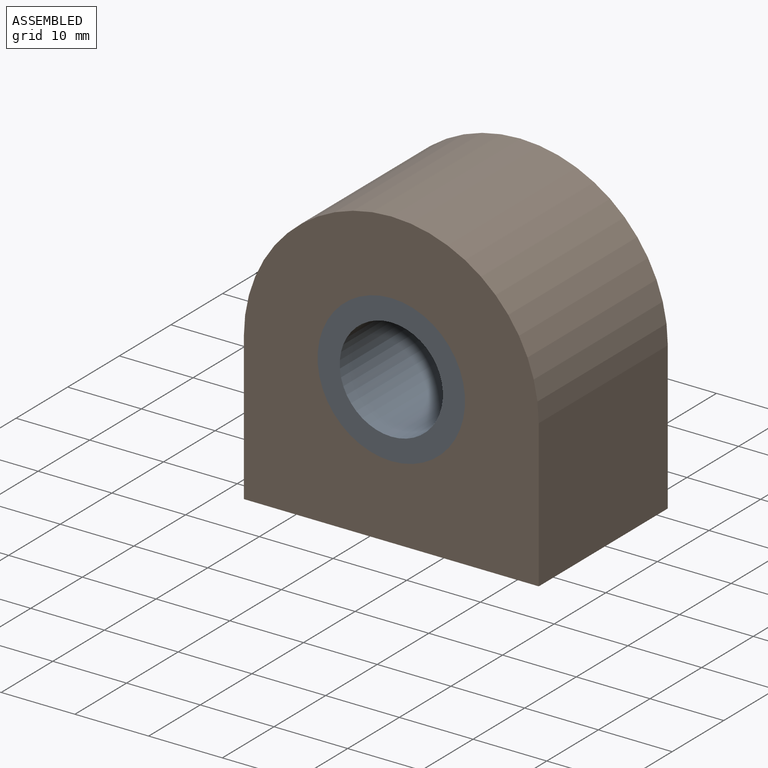
[diagram: assembled view]
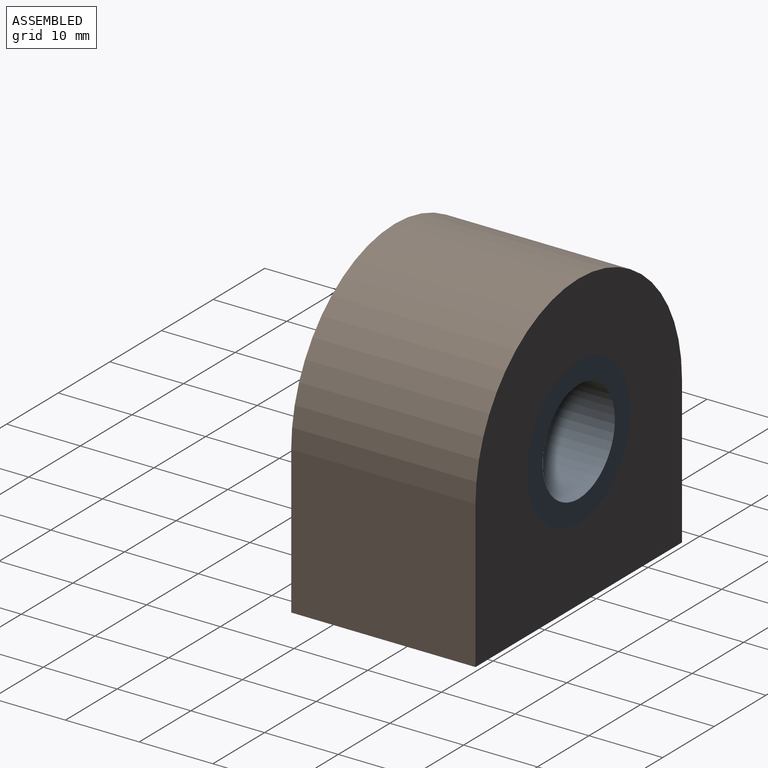
[diagram: assembled view, second angle]
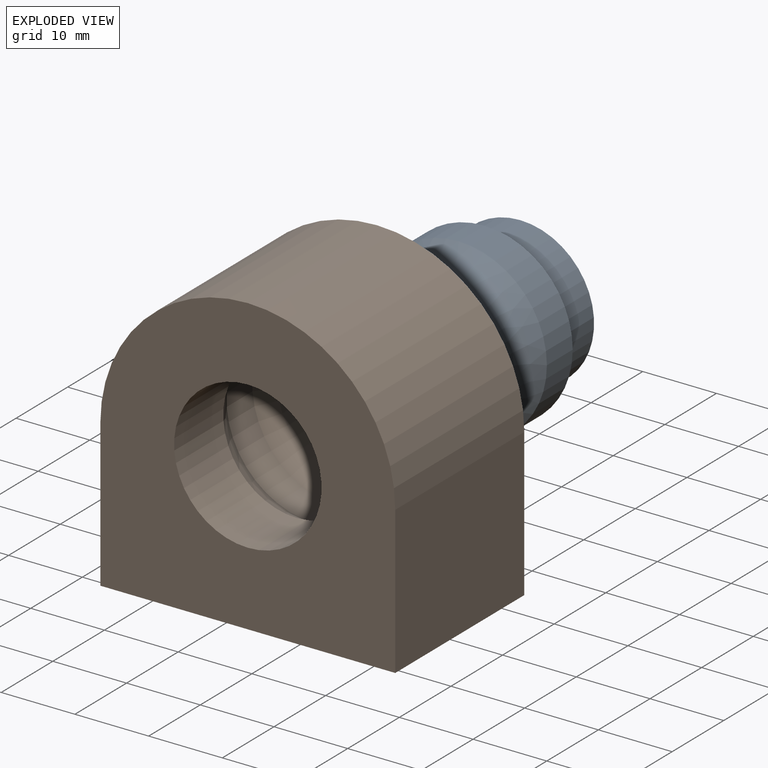
[diagram: exploded view]
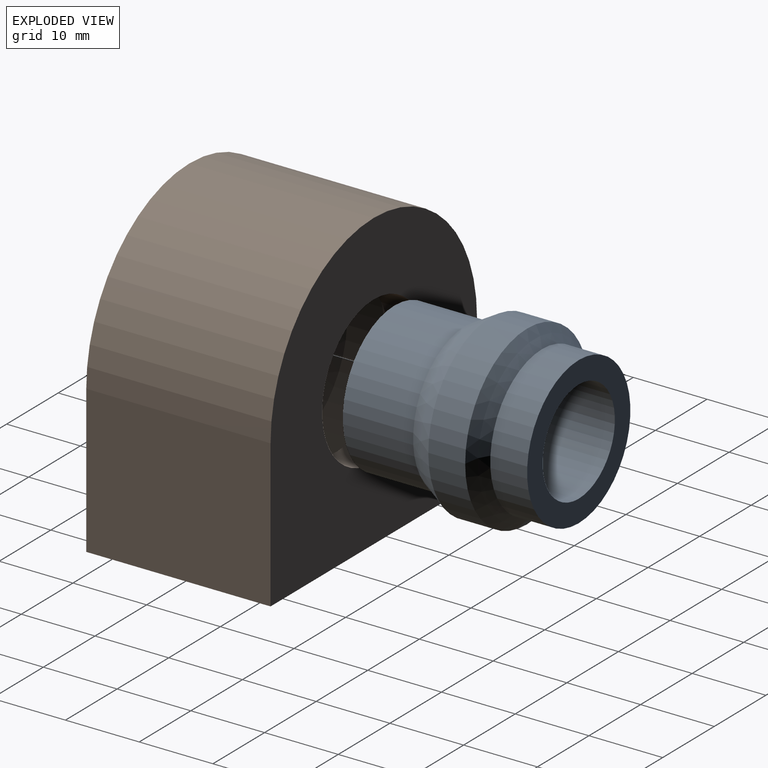
[diagram: exploded view, second angle]
ASSEMBLY  parts=2 mates=2
PART A: 8 faces, bbox 24x25x24 mm
  f0: plane 20x20mm, normal (0,1,0), area 160.2mm2, adj f1,f7
  f1: cylinder r=10mm len=20mm, axis (0,-1,0), area 314.2mm2, adj f0,f2
  f2: cone r=10mm half-angle=45deg, axis (0,-1,0), area 195.5mm2, adj f1,f3
  f3: cylinder r=12mm len=24mm, axis (0,-1,0), area 377mm2, adj f2,f4
  f4: cone r=12mm half-angle=30deg, axis (0,1,0), area 276.5mm2, adj f3,f5
  f5: cylinder r=10mm len=20mm, axis (0,-1,0), area 599.2mm2, adj f4,f6
  f6: plane 20x20mm, normal (0,-1,0), area 160.2mm2, adj f5,f7
  f7: cylinder r=7mm len=25mm, axis (0,-1,0), area 1099.6mm2, adj f0,f6
PART B: 11 faces, bbox 40x25x40 mm
  f0: plane 25x20mm, normal (-1,0,0), area 500mm2, adj f1,f3,f4,f5
  f1: plane 40x25mm, normal (0,0,-1), area 1000mm2, adj f0,f2,f4,f5
  f2: plane 25x20mm, normal (1,0,0), area 500mm2, adj f1,f3,f4,f5
  f3: cylinder r=20mm len=40mm, axis (0,-1,0), area 1570.8mm2, adj f0,f2,f4,f5
  f4: plane 40x40mm, normal (0,1,0), area 1114.2mm2, adj f0,f1,f2,f3,f6
  f5: plane 40x40mm, normal (0,-1,0), area 1114.2mm2, adj f0,f1,f2,f3,f10
  f6: cylinder r=10mm len=20mm, axis (0,1,0), area 314.2mm2, adj f4,f7
  f7: cone r=10mm half-angle=45deg, axis (0,-1,0), area 195.5mm2, adj f6,f8
  f8: cylinder r=12mm len=24mm, axis (0,1,0), area 377mm2, adj f7,f9
  f9: cone r=12mm half-angle=30deg, axis (0,1,0), area 276.5mm2, adj f8,f10
  f10: cylinder r=10mm len=20mm, axis (0,1,0), area 599.2mm2, adj f5,f9
PLACE A t=(4.08,-1.92,1.59)mm
PLACE B t=(4.08,-2.03,1.59)mm
MATE cylindrical A.f1 <-> B.f6  axis (0,-1,0) through (4.08,-9.76,1.59)mm
MATE planar B.f6 <-> A.f1  axis (0,-1,0) through (4.08,-14.53,1.59)mm
